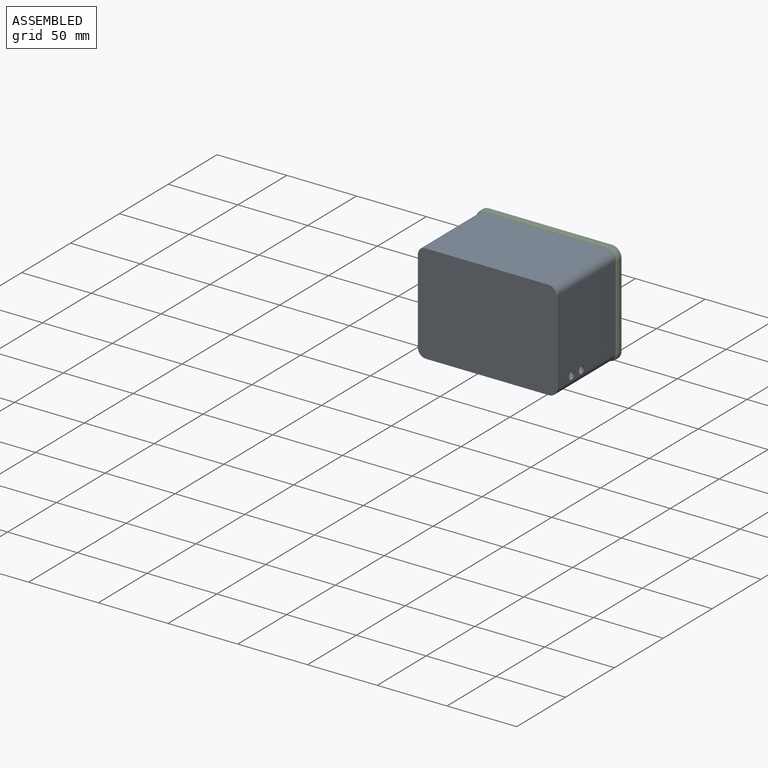
[diagram: assembled view]
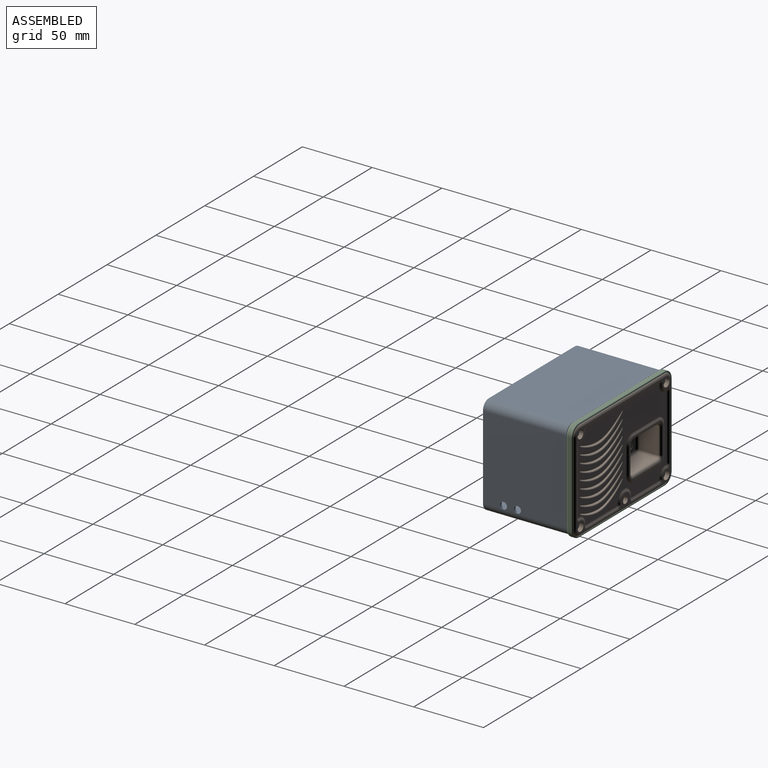
[diagram: assembled view, second angle]
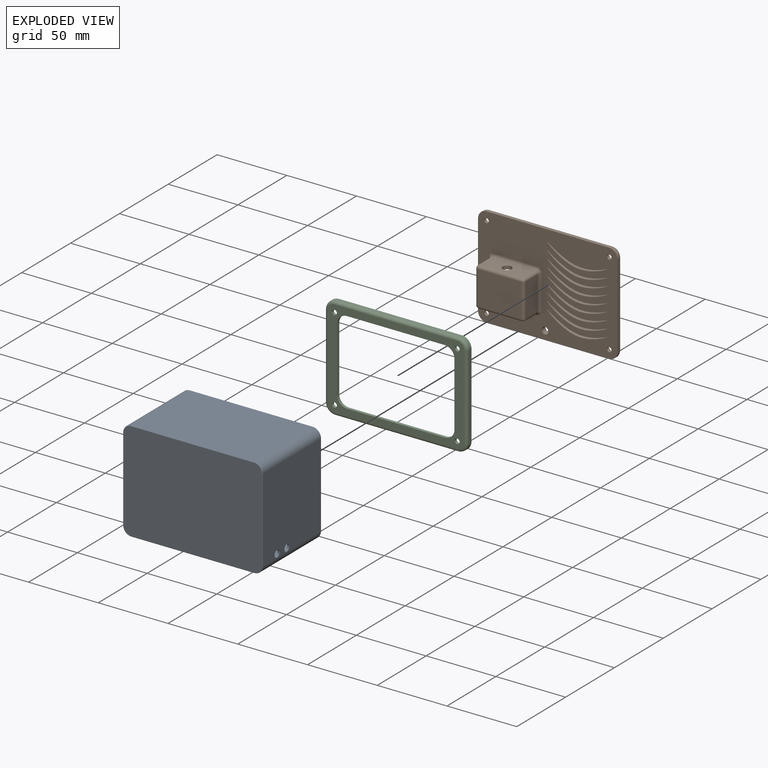
[diagram: exploded view]
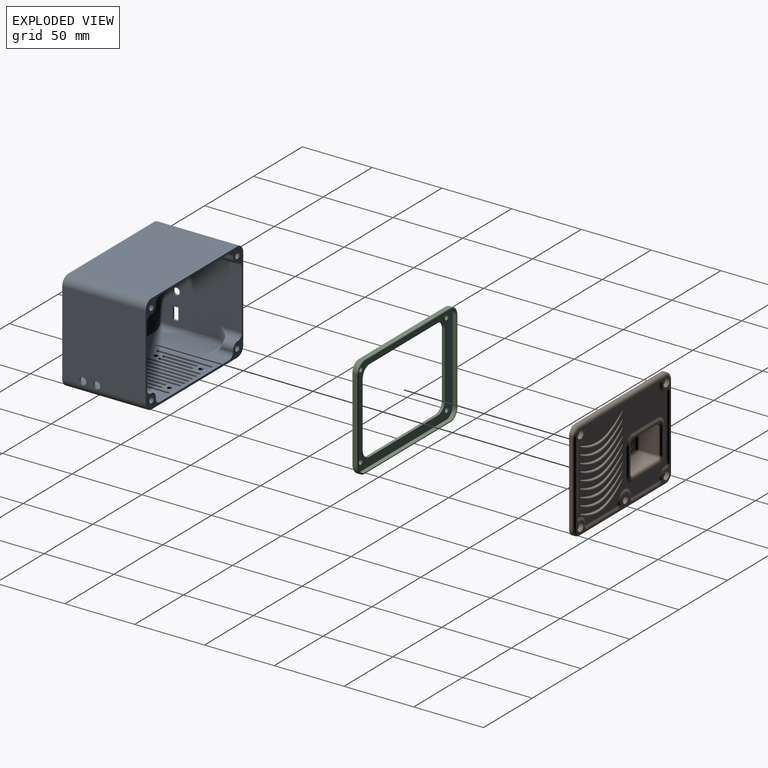
[diagram: exploded view, second angle]
ASSEMBLY  parts=3 mates=2
PART A: 146 faces, bbox 101x60x73 mm
  f0: plane 99x71mm, normal (0,-1,0), area 7003mm2, adj f1,f2,f3,f4,f5,f6,f7,f8
  f1: torus R=5.5mm, axis (0,-1,0), area 7.2mm2, adj f0,f2,f8,f10
  f2: cylinder r=0.5mm len=60mm, axis (0,0,-1), area 47.1mm2, adj f0,f1,f3,f11
  f3: torus R=5.5mm, axis (0,1,0), area 7.2mm2, adj f0,f2,f4,f78
  f4: cylinder r=0.5mm len=88mm, axis (1,0,0), area 69.1mm2, adj f0,f3,f5,f25
  f5: torus R=5.5mm, axis (0,-1,0), area 7.2mm2, adj f0,f4,f6,f24
  f6: cylinder r=0.5mm len=60mm, axis (0,0,1), area 47.1mm2, adj f0,f5,f7,f23
  f7: torus R=5.5mm, axis (0,-1,0), area 7.2mm2, adj f0,f6,f8,f22
  f8: cylinder r=0.5mm len=88mm, axis (-1,0,0), area 69.1mm2, adj f0,f1,f7,f9
  f9: plane 88x59.5mm, normal (0,0,1), area 5236mm2, adj f8,f10,f21,f22
  f10: cylinder r=6mm len=59.5mm, axis (0,-1,0), area 560.8mm2, adj f1,f9,f11,f21
  f11: plane 60x59.5mm, normal (-1,0,0), area 3514.6mm2, adj f2,f10,f12,f21,f78,f138,f139,f140
  f12: cylinder r=2.5mm len=5mm, axis (-1,0,0), area 23.6mm2, adj f11,f13
  f13: plane 60x58.5mm, normal (1,0,0), area 3183.1mm2, adj f12,f14,f15,f20,f21,f83,f115,f116
  f14: cylinder r=8mm len=11.67mm, axis (0,0,-1), area 77.3mm2, adj f13,f15,f16,f19,f20
  f15: cylinder r=4.5mm len=46.9mm, axis (0,1,0), area 316mm2, adj f13,f14,f16,f17,f83
  f16: cylinder r=8mm len=11.67mm, axis (1,0,0), area 77.3mm2, adj f14,f15,f17,f18,f19
  f17: plane 88x58.5mm, normal (0,0,1), area 4010.5mm2, adj f15,f16,f18,f21,f26,f27,f28,f29
  f18: cylinder r=4mm len=16mm, axis (0,-1,0), area 81.3mm2, adj f16,f17,f19,f21
  f19: cylinder r=4.5mm len=8.94mm, axis (0,1,0), area 64.4mm2, adj f14,f16,f18,f20,f21
  f20: cylinder r=4mm len=16mm, axis (0,-1,0), area 81.3mm2, adj f13,f14,f19,f21
  f21: plane 100x72mm, normal (0,1,0), area 754.3mm2, adj f9,f10,f11,f13,f17,f18,f19,f20
  f22: cylinder r=6mm len=59.5mm, axis (0,-1,0), area 560.8mm2, adj f7,f9,f21,f23
  f23: plane 60x59.5mm, normal (1,0,0), area 3530.7mm2, adj f6,f21,f22,f24,f79,f129
  f24: cylinder r=6mm len=59.5mm, axis (0,-1,0), area 560.8mm2, adj f5,f21,f23,f25
  f25: plane 88x59.5mm, normal (0,0,-1), area 4370mm2, adj f4,f21,f24,f26,f27,f28,f29,f30
  f26: cylinder r=1.7mm len=3.4mm, axis (0,0,1), area 16mm2, adj f17,f25
  f27: cylinder r=1.7mm len=3.4mm, axis (0,0,1), area 16mm2, adj f17,f25
  f28: cylinder r=1.7mm len=3.4mm, axis (0,0,-1), area 16mm2, adj f17,f25
  f29: cylinder r=1.7mm len=3.4mm, axis (0,0,-1), area 16mm2, adj f17,f25
  f30: cylinder r=1mm len=2mm, axis (0,0,1), area 4.7mm2, adj f17,f25,f31,f33
  f31: plane 38x1.5mm, normal (1,0,0), area 57mm2, adj f17,f25,f30,f32
  f32: cylinder r=1mm len=2mm, axis (0,0,1), area 4.7mm2, adj f17,f25,f31,f33
  f33: plane 38x1.5mm, normal (-1,0,0), area 57mm2, adj f17,f25,f30,f32
  f34: plane 38x1.5mm, normal (-1,0,0), area 57mm2, adj f17,f25,f35,f37
  f35: cylinder r=1mm len=2mm, axis (0,0,1), area 4.7mm2, adj f17,f25,f34,f36
  f36: plane 38x1.5mm, normal (1,0,0), area 57mm2, adj f17,f25,f35,f37
  f37: cylinder r=1mm len=2mm, axis (0,0,1), area 4.7mm2, adj f17,f25,f34,f36
  f38: plane 38x1.5mm, normal (-1,0,0), area 57mm2, adj f17,f25,f39,f41
  f39: cylinder r=1mm len=2mm, axis (0,0,1), area 4.7mm2, adj f17,f25,f38,f40
  f40: plane 38x1.5mm, normal (1,0,0), area 57mm2, adj f17,f25,f39,f41
  f41: cylinder r=1mm len=2mm, axis (0,0,1), area 4.7mm2, adj f17,f25,f38,f40
  f42: plane 23x1.5mm, normal (-1,0,0), area 34.5mm2, adj f17,f25,f43,f45
  f43: cylinder r=1mm len=2mm, axis (0,0,1), area 4.7mm2, adj f17,f25,f42,f44
  f44: plane 23x1.5mm, normal (1,0,0), area 34.5mm2, adj f17,f25,f43,f45
  f45: cylinder r=1mm len=2mm, axis (0,0,1), area 4.7mm2, adj f17,f25,f42,f44
  f46: plane 23x1.5mm, normal (-1,0,0), area 34.5mm2, adj f17,f25,f47,f49
  f47: cylinder r=1mm len=2mm, axis (0,0,1), area 4.7mm2, adj f17,f25,f46,f48
  f48: plane 23x1.5mm, normal (1,0,0), area 34.5mm2, adj f17,f25,f47,f49
  f49: cylinder r=1mm len=2mm, axis (0,0,1), area 4.7mm2, adj f17,f25,f46,f48
  f50: plane 38x1.5mm, normal (-1,0,0), area 57mm2, adj f17,f25,f51,f53
  f51: cylinder r=1mm len=2mm, axis (0,0,1), area 4.7mm2, adj f17,f25,f50,f52
  f52: plane 38x1.5mm, normal (1,0,0), area 57mm2, adj f17,f25,f51,f53
  f53: cylinder r=1mm len=2mm, axis (0,0,1), area 4.7mm2, adj f17,f25,f50,f52
  f54: cylinder r=1mm len=2mm, axis (0,0,-1), area 4.7mm2, adj f17,f25,f55,f57
  f55: plane 38x1.5mm, normal (1,0,0), area 57mm2, adj f17,f25,f54,f56
  f56: cylinder r=1mm len=2mm, axis (0,0,-1), area 4.7mm2, adj f17,f25,f55,f57
  f57: plane 38x1.5mm, normal (-1,0,0), area 57mm2, adj f17,f25,f54,f56
  f58: cylinder r=1mm len=2mm, axis (0,0,-1), area 4.7mm2, adj f17,f25,f59,f61
  f59: plane 23x1.5mm, normal (1,0,0), area 34.5mm2, adj f17,f25,f58,f60
  f60: cylinder r=1mm len=2mm, axis (0,0,-1), area 4.7mm2, adj f17,f25,f59,f61
  f61: plane 23x1.5mm, normal (-1,0,0), area 34.5mm2, adj f17,f25,f58,f60
  f62: cylinder r=1mm len=2mm, axis (0,0,-1), area 4.7mm2, adj f17,f25,f63,f65
  f63: plane 23x1.5mm, normal (1,0,0), area 34.5mm2, adj f17,f25,f62,f64
  f64: cylinder r=1mm len=2mm, axis (0,0,-1), area 4.7mm2, adj f17,f25,f63,f65
  f65: plane 23x1.5mm, normal (-1,0,0), area 34.5mm2, adj f17,f25,f62,f64
  f66: cylinder r=1mm len=2mm, axis (0,0,-1), area 4.7mm2, adj f17,f25,f67,f69
  f67: plane 38x1.5mm, normal (1,0,0), area 57mm2, adj f17,f25,f66,f68
  f68: cylinder r=1mm len=2mm, axis (0,0,-1), area 4.7mm2, adj f17,f25,f67,f69
  f69: plane 38x1.5mm, normal (-1,0,0), area 57mm2, adj f17,f25,f66,f68
  f70: cylinder r=1mm len=2mm, axis (0,0,-1), area 4.7mm2, adj f17,f25,f71,f73
  f71: plane 38x1.5mm, normal (1,0,0), area 57mm2, adj f17,f25,f70,f72
  f72: cylinder r=1mm len=2mm, axis (0,0,-1), area 4.7mm2, adj f17,f25,f71,f73
  f73: plane 38x1.5mm, normal (-1,0,0), area 57mm2, adj f17,f25,f70,f72
  f74: cylinder r=1mm len=2mm, axis (0,0,-1), area 4.7mm2, adj f17,f25,f75,f77
  f75: plane 38x1.5mm, normal (1,0,0), area 57mm2, adj f17,f25,f74,f76
  f76: cylinder r=1mm len=2mm, axis (0,0,-1), area 4.7mm2, adj f17,f25,f75,f77
  f77: plane 38x1.5mm, normal (-1,0,0), area 57mm2, adj f17,f25,f74,f76
  f78: cylinder r=6mm len=59.5mm, axis (0,1,0), area 560.8mm2, adj f3,f11,f21,f25
  f79: cylinder r=2.5mm len=5mm, axis (1,0,0), area 23.6mm2, adj f23,f80
  f80: plane 60x58.5mm, normal (-1,0,0), area 3199.2mm2, adj f21,f79,f81,f82,f83,f106,f111,f112
  f81: cylinder r=8mm len=11.67mm, axis (0,0,1), area 77.3mm2, adj f80,f82,f125,f127,f128
  f82: cylinder r=4.5mm len=46.9mm, axis (0,-1,0), area 316mm2, adj f17,f80,f81,f83,f125
  f83: plane 97x69mm, normal (0,1,0), area 3099.3mm2, adj f13,f15,f17,f80,f82,f84,f85,f99
  f84: plane 12x8mm, normal (0,0,-1), area 96mm2, adj f83,f85,f86,f124
  f85: cylinder r=2mm len=12mm, axis (0,-1,0), area 37.7mm2, adj f83,f84,f86,f102
  f86: plane 80x67.5mm, normal (0,1,0), area 556.6mm2, adj f84,f85,f87,f88,f89,f90,f92,f93
  f87: plane 44.5x12mm, normal (0,0,1), area 534mm2, adj f86,f88,f90,f91
  f88: plane 52.5x12mm, normal (-1,0,0), area 630mm2, adj f86,f87,f89,f91
  f89: plane 44.5x12mm, normal (0,0,-1), area 534mm2, adj f86,f88,f90,f91
  f90: plane 52.5x12mm, normal (1,0,0), area 630mm2, adj f86,f87,f89,f91
  f91: plane 52.5x44.5mm, normal (0,1,0), area 2336.2mm2, adj f87,f88,f89,f90
  f92: plane 31x12mm, normal (0,0,-1), area 372mm2, adj f86,f93,f95,f96
  f93: plane 21.6x12mm, normal (1,0,0), area 259.2mm2, adj f86,f92,f94,f96
  f94: plane 31x12mm, normal (0,0,1), area 372mm2, adj f86,f93,f95,f96
  f95: plane 21.6x12mm, normal (-1,0,0), area 259.2mm2, adj f86,f92,f94,f96
  f96: plane 31x21.6mm, normal (0,1,0), area 669.6mm2, adj f92,f93,f94,f95
  f97: cylinder r=2.1mm len=5mm, axis (0,1,0), area 66mm2, adj f86,f98
  f98: cone r=1.12mm half-angle=60deg, axis (0,1,0), area 16mm2, adj f97
  f99: cylinder r=2mm len=12mm, axis (0,-1,0), area 37.7mm2, adj f83,f86,f100,f103
  f100: plane 29.5x12mm, normal (0,0,-1), area 354mm2, adj f83,f86,f99,f101
  f101: cylinder r=1mm len=12mm, axis (0,-1,0), area 18.8mm2, adj f83,f86,f100,f102
  f102: plane 39.9x12mm, normal (-1,0,0), area 478.8mm2, adj f83,f85,f86,f101
  f103: plane 21.6x12mm, normal (-1,0,0), area 259.2mm2, adj f83,f86,f99,f104
  f104: cylinder r=1mm len=12mm, axis (0,-1,0), area 18.8mm2, adj f83,f86,f103,f105
  f105: plane 78.33x12mm, normal (0,0,1), area 939.9mm2, adj f83,f86,f104,f106
  f106: cylinder r=4.5mm len=46.9mm, axis (0,-1,0), area 304.5mm2, adj f80,f83,f86,f105,f107,f108,f111,f119
  f107: cylinder r=8mm len=11.67mm, axis (-1,0,0), area 77.3mm2, adj f106,f108,f109,f110,f111
  f108: plane 88x58.5mm, normal (0,0,-1), area 4876.5mm2, adj f21,f83,f106,f107,f109,f113,f117,f118
  f109: cylinder r=4mm len=16mm, axis (0,-1,0), area 81.3mm2, adj f21,f107,f108,f110
  f110: cylinder r=4.5mm len=8.94mm, axis (0,1,0), area 64.4mm2, adj f21,f107,f109,f111,f112
  f111: cylinder r=8mm len=11.67mm, axis (0,0,1), area 77.3mm2, adj f80,f106,f107,f110,f112
  f112: cylinder r=4mm len=16mm, axis (0,1,0), area 81.3mm2, adj f21,f80,f110,f111
  f113: cylinder r=4mm len=16mm, axis (0,1,0), area 81.3mm2, adj f21,f108,f114,f118
  f114: cylinder r=4.5mm len=8.94mm, axis (0,1,0), area 64.4mm2, adj f21,f113,f115,f116,f118
  f115: cylinder r=4mm len=16mm, axis (0,-1,0), area 81.3mm2, adj f13,f21,f114,f116
  f116: cylinder r=8mm len=11.67mm, axis (0,0,-1), area 77.3mm2, adj f13,f114,f115,f117,f118
  f117: cylinder r=4.5mm len=46.9mm, axis (0,-1,0), area 316mm2, adj f13,f83,f108,f116,f118
  f118: cylinder r=8mm len=11.67mm, axis (-1,0,0), area 77.3mm2, adj f108,f113,f114,f116,f117
  f119: plane 52.83x12mm, normal (1,0,0), area 633.9mm2, adj f83,f86,f106,f120
  f120: cylinder r=2mm len=12mm, axis (0,-1,0), area 37.7mm2, adj f83,f86,f119,f121
  f121: plane 32.5x12mm, normal (0,0,-1), area 390mm2, adj f83,f86,f120,f122
  f122: cylinder r=1mm len=12mm, axis (0,-1,0), area 18.8mm2, adj f83,f86,f121,f123
  f123: plane 12x9mm, normal (1,0,0), area 108mm2, adj f83,f86,f122,f124
  f124: cylinder r=2mm len=12mm, axis (0,-1,0), area 37.7mm2, adj f83,f84,f86,f123
  f125: cylinder r=8mm len=11.67mm, axis (1,0,0), area 77.3mm2, adj f17,f81,f82,f126,f127
  f126: cylinder r=4mm len=16mm, axis (0,1,0), area 81.3mm2, adj f17,f21,f125,f127
  f127: cylinder r=4.5mm len=8.94mm, axis (0,1,0), area 64.4mm2, adj f21,f81,f125,f126,f128
  f128: cylinder r=4mm len=16mm, axis (0,-1,0), area 81.3mm2, adj f21,f80,f81,f127
  f129: cylinder r=2.5mm len=5mm, axis (1,0,0), area 23.6mm2, adj f23,f80
  f130: cylinder r=2.1mm len=5mm, axis (0,1,0), area 66mm2, adj f21,f131
  f131: cone r=1.12mm half-angle=60deg, axis (0,1,0), area 16mm2, adj f130
  f132: cylinder r=2.1mm len=5mm, axis (0,1,0), area 66mm2, adj f21,f133
  f133: cone r=1.12mm half-angle=60deg, axis (0,1,0), area 16mm2, adj f132
  f134: cylinder r=2.1mm len=5mm, axis (0,1,0), area 66mm2, adj f21,f135
  f135: cone r=1.12mm half-angle=60deg, axis (0,1,0), area 16mm2, adj f134
  f136: cylinder r=2.1mm len=5mm, axis (0,1,0), area 66mm2, adj f21,f137
  f137: cone r=1.12mm half-angle=60deg, axis (0,1,0), area 16mm2, adj f136
  f138: plane 8x1.5mm, normal (0,1,0), area 12mm2, adj f11,f13,f139,f145
  f139: cylinder r=0.5mm len=1.5mm, axis (1,0,0), area 1.2mm2, adj f11,f13,f138,f140
  f140: plane 3x1.5mm, normal (0,0,1), area 4.5mm2, adj f11,f13,f139,f141
  f141: cylinder r=0.5mm len=1.5mm, axis (1,0,0), area 1.2mm2, adj f11,f13,f140,f142
  f142: plane 8x1.5mm, normal (0,-1,0), area 12mm2, adj f11,f13,f141,f143
  f143: cylinder r=0.5mm len=1.5mm, axis (1,0,0), area 1.2mm2, adj f11,f13,f142,f144
  f144: plane 3x1.5mm, normal (0,0,-1), area 4.5mm2, adj f11,f13,f143,f145
  f145: cylinder r=0.5mm len=1.5mm, axis (1,0,0), area 1.2mm2, adj f11,f13,f138,f144
PART B: 229 faces, bbox 73x20x101 mm
  f0: extruded ~43.49x11.87mm, area 247.6mm2, adj f9,f220
  f1: extruded ~43.49x11.87mm, area 247.6mm2, adj f9,f221
  f2: extruded ~43.49x11.87mm, area 247.6mm2, adj f9,f222
  f3: extruded ~43.49x11.87mm, area 247.6mm2, adj f9,f223
  f4: extruded ~43.49x11.87mm, area 247.6mm2, adj f9,f224
  f5: extruded ~43.49x11.87mm, area 247.6mm2, adj f9,f225
  f6: extruded ~43.49x11.87mm, area 247.6mm2, adj f9,f226
  f7: extruded ~43.49x11.87mm, area 247.6mm2, adj f9,f227
  f8: plane 90.46x62.46mm, normal (0,-1,0), area 3501.1mm2, adj f147,f148,f149,f150,f151,f152,f153,f154
  f9: plane 100x72mm, normal (0,1,0), area 5419.6mm2, adj f0,f1,f2,f3,f4,f5,f6,f7
  f10: plane 26x21mm, normal (0,-1,0), area 518.4mm2, adj f24,f28,f31,f34,f73,f74,f75,f76
  f11: cylinder r=1.65mm len=3.3mm, axis (0,-1,0), area 10.4mm2, adj f9,f52
  f12: cylinder r=1.65mm len=3.3mm, axis (0,-1,0), area 10.4mm2, adj f9,f49
  f13: cylinder r=1.65mm len=3.3mm, axis (0,-1,0), area 10.4mm2, adj f9,f48
  f14: cylinder r=1.65mm len=3.3mm, axis (0,-1,0), area 10.4mm2, adj f9,f45
  f15: plane 96x68mm, normal (0,-1,0), area 240.1mm2, adj f44,f46,f47,f50,f51,f175,f176,f177
  f16: plane 31x12mm, normal (-1,0,0), area 372mm2, adj f53,f57,f58,f59
  f17: plane 24x12mm, normal (0,0,-1), area 288mm2, adj f56,f57,f66,f67
  f18: plane 31x12mm, normal (1,0,0), area 340.8mm2, adj f26,f61,f66,f69,f72
  f19: plane 24x12mm, normal (0,0,1), area 288mm2, adj f59,f60,f68,f69
  f20: plane 34.49x27.49mm, normal (0,-1,0), area 28.1mm2, adj f195,f196,f197,f198,f199,f200,f201,f202
  f21: plane 31x24mm, normal (0,1,0), area 744mm2, adj f53,f56,f60,f61
  f22: plane 26x13.5mm, normal (1,0,0), area 351mm2, adj f29,f31,f32,f214
  f23: plane 19x13.5mm, normal (0,0,1), area 256.5mm2, adj f27,f28,f29,f218
  f24: plane 26x15.5mm, normal (-1,0,0), area 371.8mm2, adj f10,f26,f27,f35,f215
  f25: plane 19x13.5mm, normal (0,0,-1), area 256.5mm2, adj f32,f34,f35,f211
  f26: cylinder r=3.15mm len=6.3mm, axis (1,0,0), area 49.5mm2, adj f18,f24
  f27: cylinder r=2mm len=15.5mm, axis (0,-1,0), area 45.6mm2, adj f23,f24,f28,f217
  f28: cylinder r=2mm len=21mm, axis (-1,0,0), area 62.8mm2, adj f10,f23,f27,f30
  f29: cylinder r=2mm len=13.5mm, axis (0,1,0), area 42.4mm2, adj f22,f23,f30,f216
  f30: sphere r=2mm, area 6.3mm2, adj f28,f29,f31
  f31: cylinder r=2mm len=26mm, axis (0,0,1), area 81.7mm2, adj f10,f22,f30,f33
  f32: cylinder r=2mm len=13.5mm, axis (0,-1,0), area 42.4mm2, adj f22,f25,f33,f212
  f33: sphere r=2mm, area 6.3mm2, adj f31,f32,f34
  f34: cylinder r=2mm len=21mm, axis (1,0,0), area 62.8mm2, adj f10,f25,f33,f35
  f35: cylinder r=2mm len=15.5mm, axis (0,1,0), area 45.6mm2, adj f24,f25,f34,f213
  f36: plane 60x2mm, normal (0,0,-1), area 120mm2, adj f9,f40,f43,f203
  f37: plane 88x2mm, normal (1,0,0), area 176mm2, adj f9,f40,f41,f207
  f38: plane 60x2mm, normal (0,0,1), area 120mm2, adj f9,f41,f42,f210
  f39: plane 88x2mm, normal (-1,0,0), area 176mm2, adj f9,f42,f43,f206
  f40: cylinder r=6mm len=6mm, axis (0,-1,0), area 18.8mm2, adj f9,f36,f37,f205
  f41: cylinder r=6mm len=6mm, axis (0,1,0), area 18.8mm2, adj f9,f37,f38,f209
  f42: cylinder r=6mm len=6mm, axis (0,-1,0), area 18.8mm2, adj f9,f38,f39,f208
  f43: cylinder r=6mm len=6mm, axis (0,1,0), area 18.8mm2, adj f9,f36,f39,f204
  f44: cylinder r=2.45mm len=4.9mm, axis (0,-1,0), area 61.6mm2, adj f9,f15
  f45: plane 6x6mm, normal (0,-1,0), area 19.7mm2, adj f14,f46
  f46: cylinder r=3mm len=6mm, axis (0,-1,0), area 56.5mm2, adj f15,f45
  f47: cylinder r=3mm len=6mm, axis (0,-1,0), area 56.5mm2, adj f15,f48
  f48: plane 6x6mm, normal (0,-1,0), area 19.7mm2, adj f13,f47
  f49: plane 6x6mm, normal (0,-1,0), area 19.7mm2, adj f12,f50
  f50: cylinder r=3mm len=6mm, axis (0,-1,0), area 56.5mm2, adj f15,f49
  f51: cylinder r=3mm len=6mm, axis (0,-1,0), area 56.5mm2, adj f15,f52
  f52: plane 6x6mm, normal (0,-1,0), area 19.7mm2, adj f11,f51
  f53: cylinder r=2mm len=31mm, axis (0,0,-1), area 97.4mm2, adj f16,f21,f54,f55
  f54: sphere r=2mm, area 6.3mm2, adj f53,f56,f57
  f55: sphere r=2mm, area 6.3mm2, adj f53,f59,f60
  f56: cylinder r=2mm len=24mm, axis (1,0,0), area 75.4mm2, adj f17,f21,f54,f62
  f57: cylinder r=2mm len=12mm, axis (0,-1,0), area 37.7mm2, adj f16,f17,f54,f63
  f58: cylinder r=2mm len=31mm, axis (0,0,1), area 97.4mm2, adj f9,f16,f63,f64
  f59: cylinder r=2mm len=12mm, axis (0,1,0), area 37.7mm2, adj f16,f19,f55,f64
  f60: cylinder r=2mm len=24mm, axis (-1,0,0), area 75.4mm2, adj f19,f21,f55,f65
  f61: cylinder r=2mm len=31mm, axis (0,0,1), area 97.4mm2, adj f18,f21,f62,f65
  f62: sphere r=2mm, area 6.3mm2, adj f56,f61,f66
  f63: torus R=4mm, axis (0,-1,0), area 13.5mm2, adj f9,f57,f58,f67
  f64: torus R=4mm, axis (0,-1,0), area 13.5mm2, adj f9,f58,f59,f68
  f65: sphere r=2mm, area 6.3mm2, adj f60,f61,f69
  f66: cylinder r=2mm len=12mm, axis (0,1,0), area 37.7mm2, adj f17,f18,f62,f70
  f67: cylinder r=2mm len=24mm, axis (-1,0,0), area 75.4mm2, adj f9,f17,f63,f70
  f68: cylinder r=2mm len=24mm, axis (1,0,0), area 75.4mm2, adj f9,f19,f64,f71
  f69: cylinder r=2mm len=12mm, axis (0,-1,0), area 37.7mm2, adj f18,f19,f65,f71
  f70: torus R=4mm, axis (0,-1,0), area 13.5mm2, adj f9,f66,f67,f72
  f71: torus R=4mm, axis (0,-1,0), area 13.5mm2, adj f9,f68,f69,f72
  f72: cylinder r=2mm len=31mm, axis (0,0,-1), area 97.4mm2, adj f9,f18,f70,f71
  f73: plane 0.6x0.46mm, normal (-1,0,0), area 0.3mm2, adj f10,f74,f87,f88
  f74: plane 3.47x0.6mm, normal (0,0,-1), area 2.1mm2, adj f10,f73,f75,f88
  f75: plane 0.6x0.38mm, normal (1,0,0), area 0.2mm2, adj f10,f74,f76,f88
  f76: plane 1.99x0.6mm, normal (0,0,1), area 1.2mm2, adj f10,f75,f77,f88
  f77: extruded ~0.6x0.5mm, area 0.3mm2, adj f10,f76,f78,f88
  f78: extruded ~0.6x0.41mm, area 0.2mm2, adj f10,f77,f79,f88
  f79: plane 0.6x0.02mm, normal (1,0,0), area 0mm2, adj f10,f78,f80,f88
  f80: plane 2.9x1.89mm, normal (0.55,0,-0.84), area 2.1mm2, adj f10,f79,f81,f88
  f81: plane 0.6x0.46mm, normal (1,0,0), area 0.3mm2, adj f10,f80,f82,f88
  f82: plane 3.47x0.6mm, normal (0,0,1), area 2.1mm2, adj f10,f81,f83,f88
  f83: plane 0.6x0.37mm, normal (-1,0,0), area 0.2mm2, adj f10,f82,f84,f88
  f84: plane 1.97x0.6mm, normal (0,0,-1), area 1.2mm2, adj f10,f83,f85,f88
  f85: extruded ~0.94x0.6mm, area 0.6mm2, adj f10,f84,f86,f88
  f86: plane 0.6x0.02mm, normal (-1,0,0), area 0mm2, adj f10,f85,f87,f88
  f87: plane 2.91x1.9mm, normal (-0.55,0,0.84), area 2.1mm2, adj f10,f73,f86,f88
  f88: plane 3.47x2.71mm, normal (0,-1,0), area 4mm2, adj f73,f74,f75,f76,f77,f78,f79,f80
  f89: plane 0.6x0.4mm, normal (-1,0,0), area 0.2mm2, adj f10,f90,f98,f99
  f90: plane 1.48x0.6mm, normal (0,0,-1), area 0.9mm2, adj f10,f89,f91,f99
  f91: plane 1.44x0.6mm, normal (-1,0,0), area 0.9mm2, adj f10,f90,f92,f99
  f92: plane 0.6x0.36mm, normal (0,0,-1), area 0.2mm2, adj f10,f91,f93,f99
  f93: plane 1.44x0.6mm, normal (1,0,0), area 0.9mm2, adj f10,f92,f94,f99
  f94: plane 1.27x0.6mm, normal (0,0,-1), area 0.8mm2, adj f10,f93,f95,f99
  f95: plane 1.53x0.6mm, normal (-1,0,0), area 0.9mm2, adj f10,f94,f96,f99
  f96: plane 0.6x0.36mm, normal (0,0,-1), area 0.2mm2, adj f10,f95,f97,f99
  f97: plane 1.93x0.6mm, normal (1,0,0), area 1.2mm2, adj f10,f96,f98,f99
  f98: plane 3.47x0.6mm, normal (0,0,1), area 2.1mm2, adj f10,f89,f97,f99
  f99: plane 3.47x1.93mm, normal (0,-1,0), area 2.5mm2, adj f89,f90,f91,f92,f93,f94,f95,f96
  f100: plane 0.6x0.4mm, normal (-1,0,0), area 0.2mm2, adj f10,f101,f109,f110
  f101: plane 1.48x0.6mm, normal (0,0,-1), area 0.9mm2, adj f10,f100,f102,f110
  f102: plane 1.44x0.6mm, normal (-1,0,0), area 0.9mm2, adj f10,f101,f103,f110
  f103: plane 0.6x0.36mm, normal (0,0,-1), area 0.2mm2, adj f10,f102,f104,f110
  f104: plane 1.44x0.6mm, normal (1,0,0), area 0.9mm2, adj f10,f103,f105,f110
  f105: plane 1.27x0.6mm, normal (0,0,-1), area 0.8mm2, adj f10,f104,f106,f110
  f106: plane 1.53x0.6mm, normal (-1,0,0), area 0.9mm2, adj f10,f105,f107,f110
  f107: plane 0.6x0.36mm, normal (0,0,-1), area 0.2mm2, adj f10,f106,f108,f110
  f108: plane 1.93x0.6mm, normal (1,0,0), area 1.2mm2, adj f10,f107,f109,f110
  f109: plane 3.47x0.6mm, normal (0,0,1), area 2.1mm2, adj f10,f100,f108,f110
  f110: plane 3.47x1.93mm, normal (0,-1,0), area 2.5mm2, adj f100,f101,f102,f103,f104,f105,f106,f107
  f111: extruded ~1.07x0.6mm, area 0.7mm2, adj f112,f126,f127,f145
  f112: extruded ~1.06x0.6mm, area 0.7mm2, adj f111,f113,f127,f145
  f113: extruded ~0.88x0.6mm, area 0.6mm2, adj f112,f114,f127,f145
  f114: extruded ~0.87x0.6mm, area 0.6mm2, adj f113,f115,f127,f145
  f115: extruded ~1.06x0.6mm, area 0.7mm2, adj f114,f116,f127,f145
  f116: extruded ~1.07x0.6mm, area 0.7mm2, adj f115,f117,f127,f145
  f117: extruded ~0.87x0.6mm, area 0.6mm2, adj f116,f126,f127,f145
  f118: extruded ~1.31x0.6mm, area 0.8mm2, adj f10,f119,f125,f127
  f119: extruded ~1.31x0.6mm, area 0.8mm2, adj f10,f118,f120,f127
  f120: extruded ~1.17x0.6mm, area 0.8mm2, adj f10,f119,f121,f127
  f121: extruded ~1.19x0.6mm, area 0.8mm2, adj f10,f120,f122,f127
  f122: extruded ~1.31x0.6mm, area 0.8mm2, adj f10,f121,f123,f127
  f123: extruded ~1.32x0.6mm, area 0.9mm2, adj f10,f122,f124,f127
  f124: extruded ~1.18x0.6mm, area 0.8mm2, adj f10,f123,f125,f127
  f125: extruded ~1.17x0.6mm, area 0.8mm2, adj f10,f118,f124,f127
  f126: extruded ~0.87x0.6mm, area 0.6mm2, adj f111,f117,f127,f145
  f127: plane 3.57x3.19mm, normal (0,-1,0), area 3.8mm2, adj f111,f112,f113,f114,f115,f116,f117,f118
  f128: extruded ~1.07x0.6mm, area 0.7mm2, adj f129,f143,f144,f146
  f129: extruded ~1.06x0.6mm, area 0.7mm2, adj f128,f130,f144,f146
  f130: extruded ~0.88x0.6mm, area 0.6mm2, adj f129,f131,f144,f146
  f131: extruded ~0.87x0.6mm, area 0.6mm2, adj f130,f132,f144,f146
  f132: extruded ~1.06x0.6mm, area 0.7mm2, adj f131,f133,f144,f146
  f133: extruded ~1.07x0.6mm, area 0.7mm2, adj f132,f134,f144,f146
  f134: extruded ~0.87x0.6mm, area 0.6mm2, adj f133,f143,f144,f146
  f135: extruded ~1.31x0.6mm, area 0.8mm2, adj f10,f136,f142,f144
  f136: extruded ~1.31x0.6mm, area 0.8mm2, adj f10,f135,f137,f144
  f137: extruded ~1.17x0.6mm, area 0.8mm2, adj f10,f136,f138,f144
  f138: extruded ~1.19x0.6mm, area 0.8mm2, adj f10,f137,f139,f144
  f139: extruded ~1.31x0.6mm, area 0.8mm2, adj f10,f138,f140,f144
  f140: extruded ~1.32x0.6mm, area 0.9mm2, adj f10,f139,f141,f144
  f141: extruded ~1.18x0.6mm, area 0.8mm2, adj f10,f140,f142,f144
  f142: extruded ~1.17x0.6mm, area 0.8mm2, adj f10,f135,f141,f144
  f143: extruded ~0.87x0.6mm, area 0.6mm2, adj f128,f134,f144,f146
  f144: plane 3.57x3.19mm, normal (0,-1,0), area 3.8mm2, adj f128,f129,f130,f131,f132,f133,f134,f135
  f145: plane 2.86x2.34mm, normal (0,-1,0), area 5.5mm2, adj f111,f112,f113,f114,f115,f116,f117,f126
  f146: plane 2.86x2.34mm, normal (0,-1,0), area 5.5mm2, adj f128,f129,f130,f131,f132,f133,f134,f143
  f147: torus R=0.33mm, axis (0,1,0), area 2.3mm2, adj f8,f148,f149,f184
  f148: cylinder r=2mm len=46.62mm, axis (-1,0,0), area 63.8mm2, adj f8,f147,f150,f186
  f149: torus R=6.42mm, axis (0,-1,0), area 14.5mm2, adj f8,f147,f151,f182
  f150: torus R=0.33mm, axis (0,1,0), area 2.3mm2, adj f8,f148,f152,f188
  f151: torus R=0.33mm, axis (0,1,0), area 2.3mm2, adj f8,f149,f153,f180
  f152: torus R=6.42mm, axis (0,-1,0), area 14.5mm2, adj f8,f150,f154,f190
  f153: cylinder r=2mm len=27.81mm, axis (0,0,-1), area 38.1mm2, adj f8,f151,f155,f178
  f154: torus R=0.33mm, axis (0,1,0), area 2.3mm2, adj f8,f152,f156,f192
  f155: torus R=0.33mm, axis (0,1,0), area 2.3mm2, adj f8,f153,f157,f176
  f156: cylinder r=2mm len=74.62mm, axis (0,0,-1), area 102.1mm2, adj f8,f154,f158,f194
  f157: torus R=7.22mm, axis (0,-1,0), area 30.4mm2, adj f8,f155,f159,f175
  f158: torus R=0.33mm, axis (0,1,0), area 2.3mm2, adj f8,f156,f160,f193
  f159: torus R=0.33mm, axis (0,1,0), area 2.3mm2, adj f8,f157,f161,f177
  f160: torus R=6.42mm, axis (0,-1,0), area 14.5mm2, adj f8,f158,f162,f191
  f161: cylinder r=2mm len=31.81mm, axis (0,0,-1), area 43.5mm2, adj f8,f159,f163,f179
  f162: torus R=0.33mm, axis (0,1,0), area 2.3mm2, adj f8,f160,f164,f189
  f163: torus R=0.33mm, axis (0,1,0), area 2.3mm2, adj f8,f161,f165,f181
  f164: cylinder r=2mm len=46.62mm, axis (-1,0,0), area 63.8mm2, adj f8,f162,f166,f187
  f165: torus R=6.42mm, axis (0,-1,0), area 14.5mm2, adj f8,f163,f166,f183
  f166: torus R=0.33mm, axis (0,1,0), area 2.3mm2, adj f8,f164,f165,f185
  f167: cylinder r=2mm len=26mm, axis (0,0,1), area 35.6mm2, adj f8,f168,f169,f199
  f168: torus R=6.77mm, axis (0,-1,0), area 13.1mm2, adj f8,f167,f170,f197
  f169: torus R=6.77mm, axis (0,-1,0), area 13.1mm2, adj f8,f167,f171,f201
  f170: cylinder r=2mm len=19mm, axis (1,0,0), area 26mm2, adj f8,f168,f172,f195
  f171: cylinder r=2mm len=19mm, axis (1,0,0), area 26mm2, adj f8,f169,f173,f202
  f172: torus R=6.77mm, axis (0,-1,0), area 13.1mm2, adj f8,f170,f174,f196
  f173: torus R=6.77mm, axis (0,-1,0), area 13.1mm2, adj f8,f171,f174,f200
  f174: cylinder r=2mm len=26mm, axis (0,0,1), area 35.6mm2, adj f8,f172,f173,f198
  f175: torus R=4.69mm, axis (0,1,0), area 24.7mm2, adj f15,f157,f176,f177
  f176: torus R=2.86mm, axis (0,-1,0), area 5.1mm2, adj f15,f155,f175,f178
  f177: torus R=2.86mm, axis (0,-1,0), area 5.1mm2, adj f15,f159,f175,f179
  f178: cylinder r=2mm len=27.81mm, axis (0,0,-1), area 38.1mm2, adj f15,f153,f176,f180
  f179: cylinder r=2mm len=31.81mm, axis (0,0,-1), area 43.5mm2, adj f15,f161,f177,f181
  f180: torus R=2.86mm, axis (0,-1,0), area 5.1mm2, adj f15,f151,f178,f182
  f181: torus R=2.86mm, axis (0,-1,0), area 5.1mm2, adj f15,f163,f179,f183
  f182: torus R=3.89mm, axis (0,1,0), area 11.4mm2, adj f15,f149,f180,f184
  f183: torus R=3.89mm, axis (0,1,0), area 11.4mm2, adj f15,f165,f181,f185
  f184: torus R=2.86mm, axis (0,-1,0), area 5.1mm2, adj f15,f147,f182,f186
  f185: torus R=2.86mm, axis (0,-1,0), area 5.1mm2, adj f15,f166,f183,f187
  f186: cylinder r=2mm len=46.62mm, axis (-1,0,0), area 63.8mm2, adj f15,f148,f184,f188
  f187: cylinder r=2mm len=46.62mm, axis (-1,0,0), area 63.8mm2, adj f15,f164,f185,f189
  f188: torus R=2.86mm, axis (0,-1,0), area 5.1mm2, adj f15,f150,f186,f190
  f189: torus R=2.86mm, axis (0,-1,0), area 5.1mm2, adj f15,f162,f187,f191
  f190: torus R=3.89mm, axis (0,1,0), area 11.4mm2, adj f15,f152,f188,f192
  f191: torus R=3.89mm, axis (0,1,0), area 11.4mm2, adj f15,f160,f189,f193
  f192: torus R=2.86mm, axis (0,-1,0), area 5.1mm2, adj f15,f154,f190,f194
  f193: torus R=2.86mm, axis (0,-1,0), area 5.1mm2, adj f15,f158,f191,f194
  f194: cylinder r=2mm len=74.62mm, axis (0,0,-1), area 102.1mm2, adj f15,f156,f192,f193
  f195: cylinder r=2mm len=19mm, axis (1,0,0), area 26mm2, adj f20,f170,f196,f197
  f196: torus R=4.24mm, axis (0,1,0), area 10.5mm2, adj f20,f172,f195,f198
  f197: torus R=4.24mm, axis (0,1,0), area 10.5mm2, adj f20,f168,f195,f199
  f198: cylinder r=2mm len=26mm, axis (0,0,1), area 35.6mm2, adj f20,f174,f196,f200
  f199: cylinder r=2mm len=26mm, axis (0,0,1), area 35.6mm2, adj f20,f167,f197,f201
  f200: torus R=4.24mm, axis (0,1,0), area 10.5mm2, adj f20,f173,f198,f202
  f201: torus R=4.24mm, axis (0,1,0), area 10.5mm2, adj f20,f169,f199,f202
  f202: cylinder r=2mm len=19mm, axis (1,0,0), area 26mm2, adj f20,f171,f200,f201
  f203: cylinder r=2mm len=60mm, axis (1,0,0), area 188.5mm2, adj f15,f36,f204,f205
  f204: torus R=4mm, axis (0,-1,0), area 26mm2, adj f15,f43,f203,f206
  f205: torus R=4mm, axis (0,-1,0), area 26mm2, adj f15,f40,f203,f207
  f206: cylinder r=2mm len=88mm, axis (0,0,-1), area 276.5mm2, adj f15,f39,f204,f208
  f207: cylinder r=2mm len=88mm, axis (0,0,1), area 276.5mm2, adj f15,f37,f205,f209
  f208: torus R=4mm, axis (0,-1,0), area 26mm2, adj f15,f42,f206,f210
  f209: torus R=4mm, axis (0,-1,0), area 26mm2, adj f15,f41,f207,f210
  f210: cylinder r=2mm len=60mm, axis (-1,0,0), area 188.5mm2, adj f15,f38,f208,f209
  f211: cylinder r=2mm len=19mm, axis (-1,0,0), area 59.7mm2, adj f20,f25,f212,f213
  f212: torus R=4mm, axis (0,-1,0), area 13.5mm2, adj f20,f32,f211,f214
  f213: torus R=4mm, axis (0,-1,0), area 13.5mm2, adj f20,f35,f211,f215
  f214: cylinder r=2mm len=26mm, axis (0,0,-1), area 81.7mm2, adj f20,f22,f212,f216
  f215: cylinder r=2mm len=26mm, axis (0,0,1), area 81.7mm2, adj f20,f24,f213,f217
  f216: torus R=4mm, axis (0,-1,0), area 13.5mm2, adj f20,f29,f214,f218
  f217: torus R=4mm, axis (0,-1,0), area 13.5mm2, adj f20,f27,f215,f218
  f218: cylinder r=2mm len=19mm, axis (1,0,0), area 59.7mm2, adj f20,f23,f216,f217
  f219: extruded ~43.49x11.87mm, area 247.6mm2, adj f9,f228
  f220: bspline ~43.99x12.58mm, area 74.8mm2, adj f0,f8
  f221: bspline ~43.99x12.58mm, area 74.8mm2, adj f1,f8
  f222: bspline ~43.99x12.58mm, area 74.8mm2, adj f2,f8
  f223: bspline ~43.99x12.58mm, area 74.8mm2, adj f3,f8
  f224: bspline ~43.99x12.58mm, area 74.8mm2, adj f4,f8
  f225: bspline ~43.99x12.58mm, area 74.8mm2, adj f5,f8
  f226: bspline ~43.99x12.58mm, area 74.8mm2, adj f6,f8
  f227: bspline ~43.99x12.58mm, area 74.8mm2, adj f7,f8
  f228: bspline ~43.99x12.58mm, area 74.8mm2, adj f8,f219
PART C: 47 faces, bbox 103.2x5x75.2 mm
  f0: plane 100.2x72.2mm, normal (0,-1,0), area 2161.7mm2, adj f1,f2,f3,f7,f8,f9,f10,f12
  f1: plane 70x2mm, normal (0,0,1), area 140mm2, adj f0,f13,f18,f21
  f2: plane 46x2mm, normal (1,0,0), area 92mm2, adj f0,f13,f18,f19
  f3: plane 70x2mm, normal (0,0,-1), area 140mm2, adj f0,f13,f19,f20
  f4: plane 60x2.5mm, normal (-1,0,0), area 150mm2, adj f14,f17,f38,f42
  f5: plane 88x2.5mm, normal (0,0,-1), area 220mm2, adj f14,f15,f34,f39
  f6: plane 60x2.5mm, normal (1,0,0), area 150mm2, adj f15,f16,f31,f43
  f7: cylinder r=1.75mm len=3.5mm, axis (0,1,0), area 22mm2, adj f0,f13
  f8: cylinder r=1.75mm len=3.5mm, axis (0,1,0), area 22mm2, adj f0,f13
  f9: cylinder r=1.75mm len=3.5mm, axis (0,1,0), area 22mm2, adj f0,f13
  f10: cylinder r=1.75mm len=3.5mm, axis (0,1,0), area 22mm2, adj f0,f13
  f11: plane 88x2.5mm, normal (0,0,1), area 220mm2, adj f16,f17,f35,f46
  f12: plane 46x2mm, normal (-1,0,0), area 92mm2, adj f0,f13,f20,f21
  f13: plane 98x70mm, normal (0,1,0), area 1802.1mm2, adj f1,f2,f3,f7,f8,f9,f10,f12
  f14: cylinder r=7mm len=7mm, axis (0,-1,0), area 27.5mm2, adj f4,f5,f36,f40
  f15: cylinder r=7mm len=7mm, axis (0,1,0), area 27.5mm2, adj f5,f6,f32,f41
  f16: cylinder r=7mm len=7mm, axis (0,-1,0), area 27.5mm2, adj f6,f11,f33,f45
  f17: cylinder r=7mm len=7mm, axis (0,1,0), area 27.5mm2, adj f4,f11,f37,f44
  f18: cylinder r=7mm len=7mm, axis (0,1,0), area 22mm2, adj f0,f1,f2,f13
  f19: cylinder r=7mm len=7mm, axis (0,-1,0), area 22mm2, adj f0,f2,f3,f13
  f20: cylinder r=7mm len=7mm, axis (0,1,0), area 22mm2, adj f0,f3,f12,f13
  f21: cylinder r=7mm len=7mm, axis (0,-1,0), area 22mm2, adj f0,f1,f12,f13
  f22: cylinder r=6.5mm len=6.5mm, axis (0,1,0), area 30.6mm2, adj f0,f23,f29,f30
  f23: plane 87.2x3mm, normal (0,0,-1), area 261.6mm2, adj f0,f22,f24,f30
  f24: cylinder r=6.5mm len=6.5mm, axis (0,1,0), area 30.6mm2, adj f0,f23,f25,f30
  f25: plane 59.2x3mm, normal (-1,0,0), area 177.6mm2, adj f0,f24,f26,f30
  f26: cylinder r=6.5mm len=6.5mm, axis (0,1,0), area 30.6mm2, adj f0,f25,f27,f30
  f27: plane 87.2x3mm, normal (0,0,1), area 261.6mm2, adj f0,f26,f28,f30
  f28: cylinder r=6.5mm len=6.5mm, axis (0,1,0), area 30.6mm2, adj f0,f27,f29,f30
  f29: plane 59.2x3mm, normal (1,0,0), area 177.6mm2, adj f0,f22,f28,f30
  f30: plane 101x73mm, normal (0,-1,0), area 138.6mm2, adj f22,f23,f24,f25,f26,f27,f28,f29
  f31: cylinder r=0.5mm len=60mm, axis (0,0,-1), area 47.1mm2, adj f6,f30,f32,f33
  f32: torus R=6.5mm, axis (0,-1,0), area 8.4mm2, adj f15,f30,f31,f34
  f33: torus R=6.5mm, axis (0,-1,0), area 8.4mm2, adj f16,f30,f31,f35
  f34: cylinder r=0.5mm len=88mm, axis (-1,0,0), area 69.1mm2, adj f5,f30,f32,f36
  f35: cylinder r=0.5mm len=88mm, axis (1,0,0), area 69.1mm2, adj f11,f30,f33,f37
  f36: torus R=6.5mm, axis (0,-1,0), area 8.4mm2, adj f14,f30,f34,f38
  f37: torus R=6.5mm, axis (0,-1,0), area 8.4mm2, adj f17,f30,f35,f38
  f38: cylinder r=0.5mm len=60mm, axis (0,0,1), area 47.1mm2, adj f4,f30,f36,f37
  f39: cylinder r=2mm len=88mm, axis (1,0,0), area 276.5mm2, adj f5,f13,f40,f41
  f40: torus R=5mm, axis (0,-1,0), area 31mm2, adj f13,f14,f39,f42
  f41: torus R=5mm, axis (0,-1,0), area 31mm2, adj f13,f15,f39,f43
  f42: cylinder r=2mm len=60mm, axis (0,0,-1), area 188.5mm2, adj f4,f13,f40,f44
  f43: cylinder r=2mm len=60mm, axis (0,0,1), area 188.5mm2, adj f6,f13,f41,f45
  f44: torus R=5mm, axis (0,-1,0), area 31mm2, adj f13,f17,f42,f46
  f45: torus R=5mm, axis (0,-1,0), area 31mm2, adj f13,f16,f43,f46
  f46: cylinder r=2mm len=88mm, axis (-1,0,0), area 276.5mm2, adj f11,f13,f44,f45
PLACE A t=(61.23,82.2,5.52)mm fixed
PLACE B rot(axis=(0.71,0,0.71),180deg) t=(37.73,128.2,-0.48)mm
PLACE C rot(axis=(0,0,1),180deg) t=(61.23,142.2,5.52)mm
MATE fastened C.f9 <-> A.f1  axis (0,-1,0) through (17.23,142.2,35.52)mm
MATE fastened B.f11 <-> C.f8  axis (0,-1,0) through (17.23,144.2,-24.48)mm
